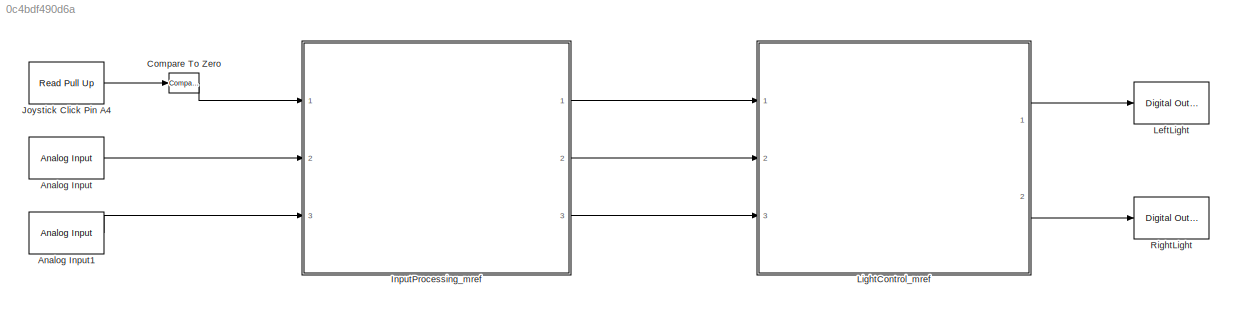
MODEL slx_0c4bdf490d6a
KIND model
BLOCK [Reference] Analog Input  REF=arduinolib/Analog Input
  Ports = [0, 1]
  SourceBlock = arduinolib/Analog Input
  SourceProductBaseCode = ARDUINO
  SourceProductName = Simulink Support Package for Arduino Hardware
  SourceType = Arduino Analog Input
BLOCK [Reference] Analog Input1  REF=arduinolib/Analog Input
  Ports = [0, 1]
  SourceBlock = arduinolib/Analog Input
  SourceProductBaseCode = ARDUINO
  SourceProductName = Simulink Support Package for Arduino Hardware
  SourceType = Arduino Analog Input
BLOCK [Reference] Compare To Zero  REF=simulink/Logic and Bit
Operations/Compare
To Zero
  Ports = [1, 1]
  SourceBlock = simulink/Logic and Bit\nOperations/Compare\nTo Zero
  SourceProductBaseCode = SL
  SourceProductName = Simulink
  SourceType = Compare To Zero
BLOCK [ModelReference] InputProcessing_mref
  ModelNameDialog = InputProcessing.slx
  ModelReferenceVersion = 1.35
  Ports = [3, 3]
BLOCK [Reference] Joystick Click Pin A4  REF=CustomLibrary/Read Pull Up
  Ports = [0, 1]
  SourceBlock = CustomLibrary/Read Pull Up
  SourceProductName = Custom Blocks
BLOCK [Reference] LeftLight  REF=arduinolib/Digital Output
  Ports = [1]
  SourceBlock = arduinolib/Digital Output
  SourceProductBaseCode = ARDUINO
  SourceProductName = Simulink Support Package for Arduino Hardware
  SourceType = Arduino Digital Output
BLOCK [ModelReference] LightControl_mref
  ModelNameDialog = LightControl.slx
  ModelReferenceVersion = 1.31
  Ports = [3, 2]
BLOCK [Reference] RightLight  REF=arduinolib/Digital Output
  Ports = [1]
  SourceBlock = arduinolib/Digital Output
  SourceProductBaseCode = ARDUINO
  SourceProductName = Simulink Support Package for Arduino Hardware
  SourceType = Arduino Digital Output
LINE Analog Input1:1 -> InputProcessing_mref:3
LINE Analog Input:1 -> InputProcessing_mref:2
LINE Compare To Zero:1 -> InputProcessing_mref:1
LINE InputProcessing_mref:1 -> LightControl_mref:1
LINE InputProcessing_mref:2 -> LightControl_mref:2
LINE InputProcessing_mref:3 -> LightControl_mref:3
LINE Joystick Click Pin A4:1 -> Compare To Zero:1
LINE LightControl_mref:1 -> LeftLight:1
LINE LightControl_mref:2 -> RightLight:1
